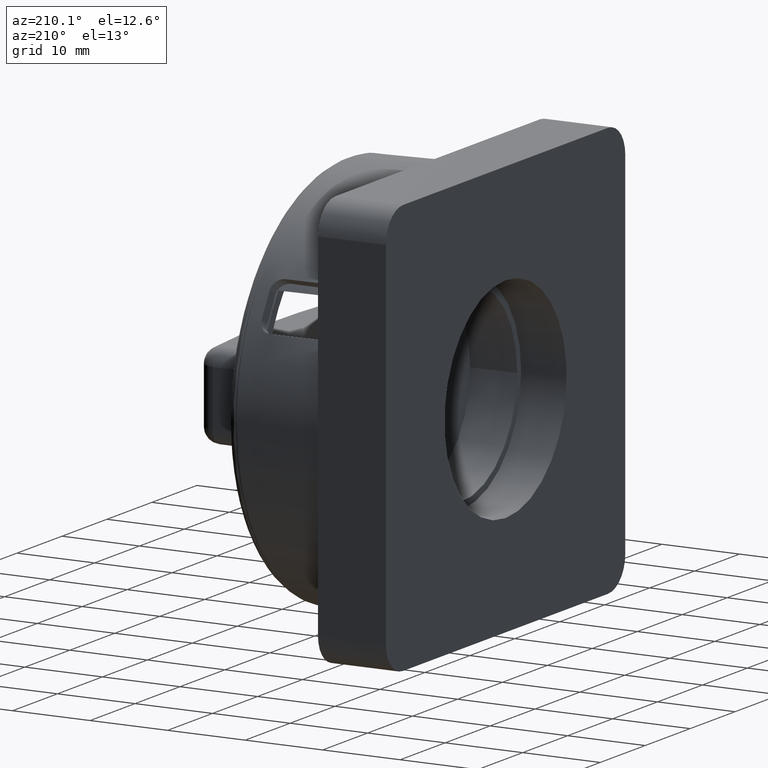
[diagram: clean part render]
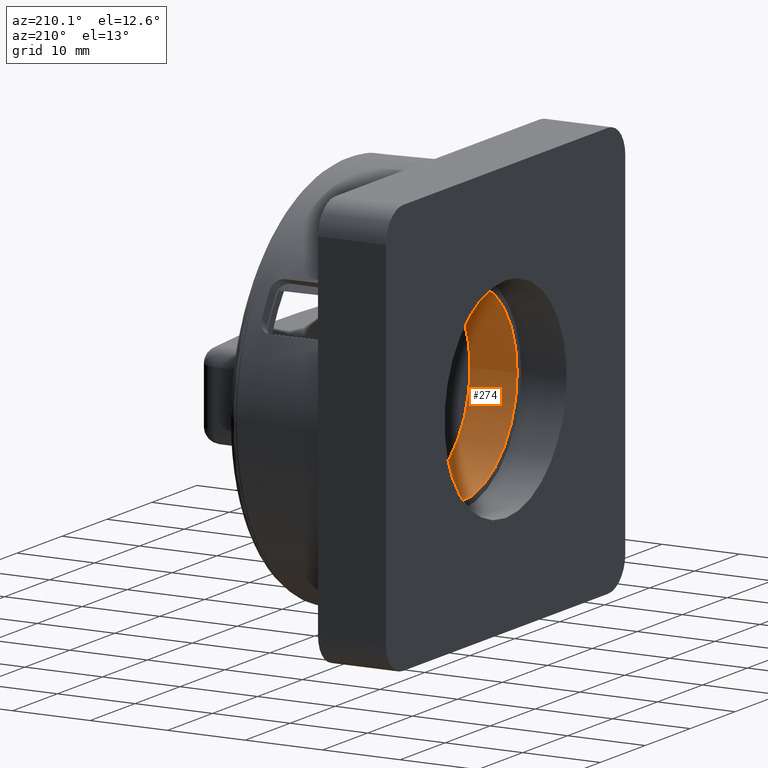
[diagram: same view with one face highlighted and labeled with its STEP entity id]
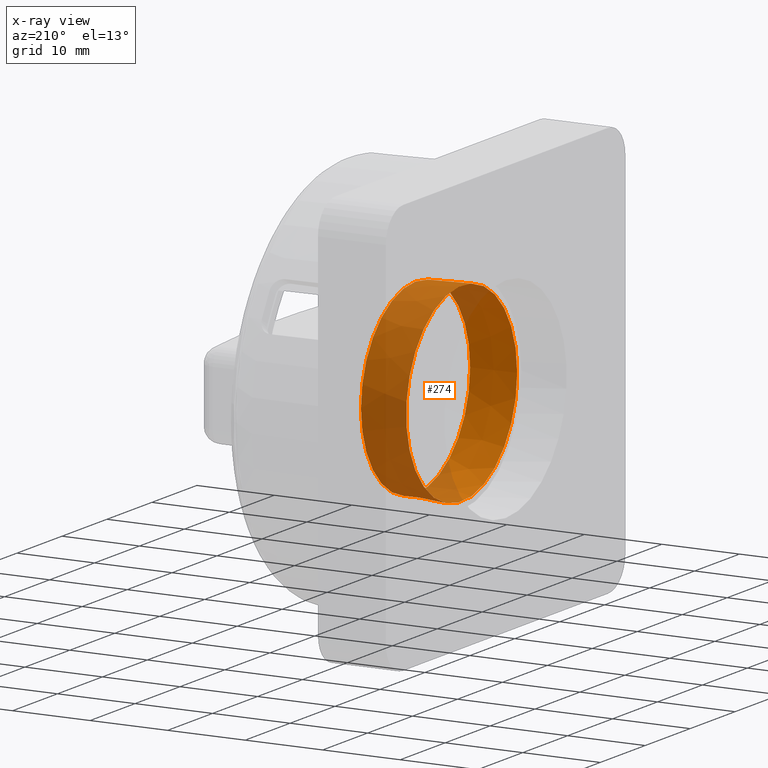
[diagram: x-ray of the same camera — body ghosted, the highlighted face saturated]
A machine part, auxiliary view. The second image highlights one B-rep face of the part: STEP entity #274.
The next image is the same camera in x-ray: the body ghosted, the highlighted face saturated — about 57% of this face is hidden behind the body in this view.
In plain terms, the highlighted conical surface has half-angle 2 deg.
Its self-contained STEP definition (entity closure, byte-faithful):
#49=CONICAL_SURFACE('',#1727,12.1422130723681,2.00000000000053);
#274=ADVANCED_FACE('',(#383,#384),#49,.F.);
#383=FACE_BOUND('',#474,.T.);
#384=FACE_BOUND('',#475,.T.);
#474=EDGE_LOOP('',(#949));
#475=EDGE_LOOP('',(#950));
#562=CIRCLE('',#1704,12.35);
#575=CIRCLE('',#1725,12.1422130723681);
#949=ORIENTED_EDGE('',*,*,#1381,.T.);
#950=ORIENTED_EDGE('',*,*,#1398,.F.);
#1175=VERTEX_POINT('',#2975);
#1187=VERTEX_POINT('',#3072);
#1381=EDGE_CURVE('',#1175,#1175,#562,.T.);
#1398=EDGE_CURVE('',#1187,#1187,#575,.T.);
#1704=AXIS2_PLACEMENT_3D('',#2974,#2066,#2067);
#1725=AXIS2_PLACEMENT_3D('',#3071,#2108,#2109);
#1727=AXIS2_PLACEMENT_3D('',#3074,#2112,#2113);
#2066=DIRECTION('',(-0.999999999999995,-8.31535970370452E-010,-1.02954039982998E-007));
#2067=DIRECTION('',(8.31535695001461E-010,-1.,2.36455367207117E-009));
#2108=DIRECTION('',(-0.999999999999995,-8.31535970370452E-010,-1.02954039982998E-007));
#2109=DIRECTION('',(8.31536007059345E-010,-1.,2.36455376118889E-009));
#2112=DIRECTION('',(-0.999999999999995,-8.31535970370452E-010,-1.02954039982998E-007));
#2113=DIRECTION('',(-8.31537313683011E-010,1.,-2.36455381724893E-009));
#2974=CARTESIAN_POINT('',(75.4049645344586,32.4954160756528,61.3460569456642));
#2975=CARTESIAN_POINT('',(75.4049645447281,20.1454160756528,61.3460569748664));
#3071=CARTESIAN_POINT('',(81.3552036230019,32.4954160806006,61.3460575582654));
#3072=CARTESIAN_POINT('',(81.3552036330986,20.3532030082325,61.3460575869763));
#3074=CARTESIAN_POINT('',(81.3552036230019,32.4954160806006,61.3460575582654));